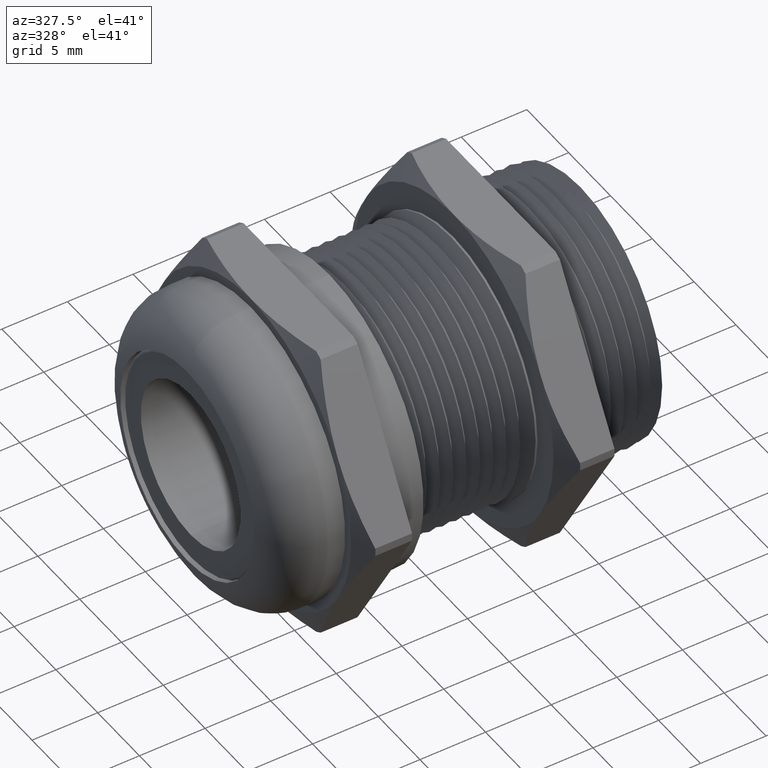
[diagram: clean part render]
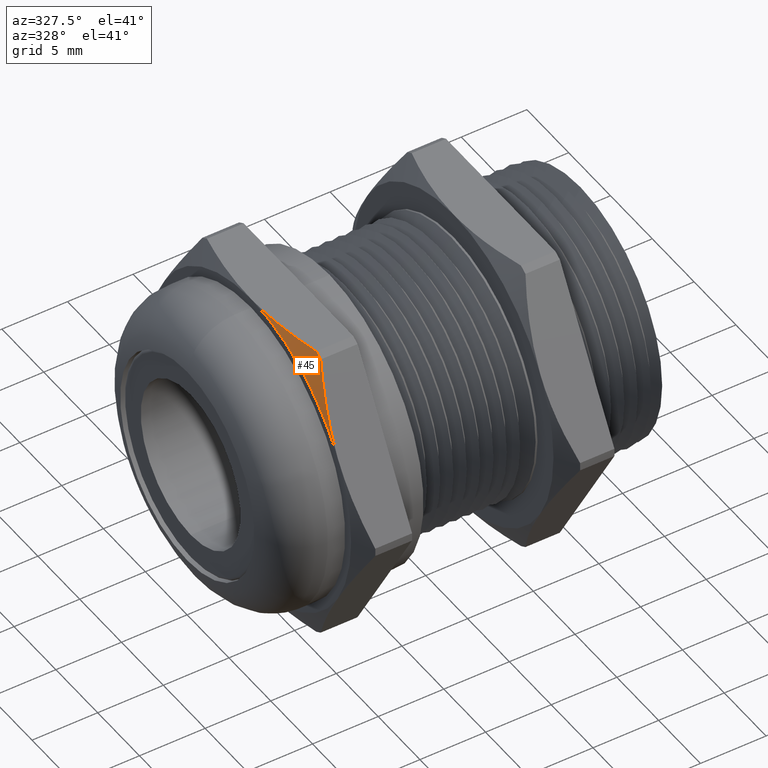
[diagram: same view with one face highlighted and labeled with its STEP entity id]
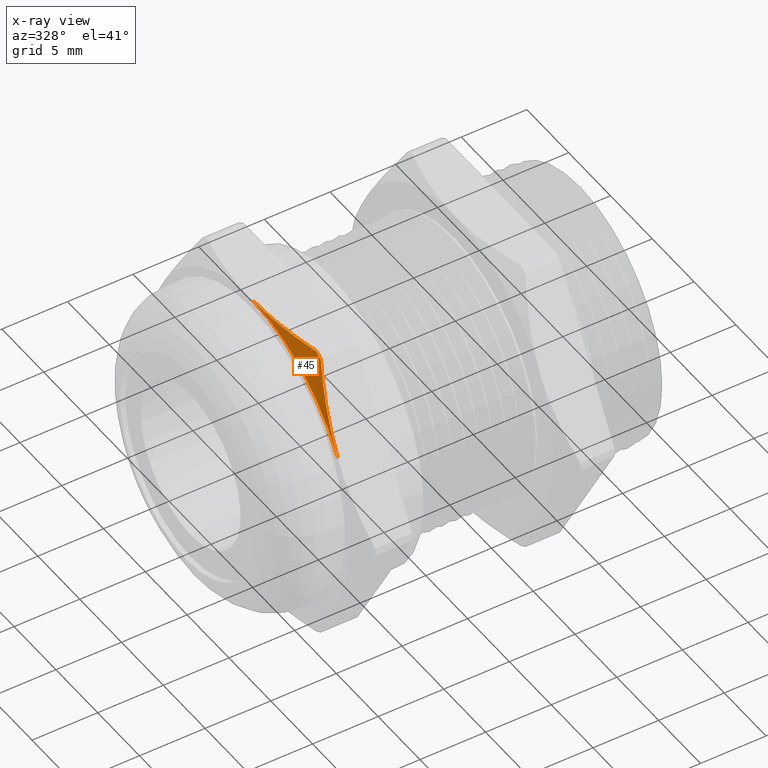
[diagram: x-ray of the same camera — body ghosted, the highlighted face saturated]
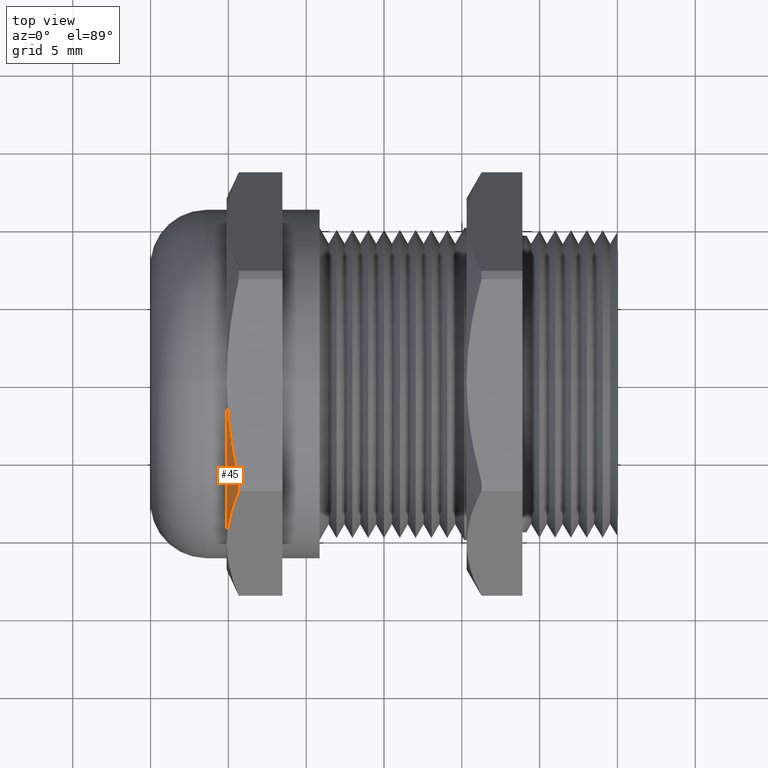
[diagram: same view with one face highlighted and labeled with its STEP entity id]
A machine part, auxiliary view. The second image highlights one B-rep face of the part: STEP entity #45.
The next image is the same camera in x-ray: the body ghosted, the highlighted face saturated — about 0% of this face is hidden behind the body in this view.
A second angle (top view) of the same face is appended — the face is thin or edge-on in the first view.
In plain terms, the highlighted conical surface has half-angle 65 deg.
Its self-contained STEP definition (entity closure, byte-faithful):
#45 = ADVANCED_FACE ( 'NONE', ( #1169 ), #1229, .T. ) ;
#46 = EDGE_LOOP ( 'NONE', ( #47, #96, #97, #98 ) ) ;
#47 = ORIENTED_EDGE ( 'NONE', *, *, #921, .F. ) ;
#96 = ORIENTED_EDGE ( 'NONE', *, *, #1097, .F. ) ;
#97 = ORIENTED_EDGE ( 'NONE', *, *, #859, .T. ) ;
#98 = ORIENTED_EDGE ( 'NONE', *, *, #987, .F. ) ;
#859 = EDGE_CURVE ( 'NONE', #860, #861, #2589, .T. ) ;
#860 = VERTEX_POINT ( 'NONE', #2585 ) ;
#861 = VERTEX_POINT ( 'NONE', #2584 ) ;
#919 = VERTEX_POINT ( 'NONE', #2690 ) ;
#921 = EDGE_CURVE ( 'NONE', #919, #922, #2689, .T. ) ;
#922 = VERTEX_POINT ( 'NONE', #2684 ) ;
#987 = EDGE_CURVE ( 'NONE', #922, #861, #2853, .T. ) ;
#1097 = EDGE_CURVE ( 'NONE', #860, #919, #3070, .T. ) ;
#1169 = FACE_OUTER_BOUND ( 'NONE', #46, .T. ) ;
#1224 = DIRECTION ( 'NONE',  ( 0.0000000000000000000, 0.0000000000000000000, 1.000000000000000000 ) ) ;
#1225 = DIRECTION ( 'NONE',  ( 1.000000000000000000, 0.0000000000000000000, 0.0000000000000000000 ) ) ;
#1226 = CARTESIAN_POINT ( 'NONE',  ( -0.3979999999999999600, 0.0000000000000000000, 0.0000000000000000000 ) ) ;
#1227 = AXIS2_PLACEMENT_3D ( 'NONE', #1226, #1225, #1224 ) ;
#1229 = CONICAL_SURFACE ( 'NONE', #1227, 0.4699999999999999200, 1.134464013796316700 ) ;
#2529 = CARTESIAN_POINT ( 'NONE',  ( -0.3673169560934012600, 0.0000000000000000000, 0.0000000000000000000 ) ) ;
#2584 = CARTESIAN_POINT ( 'NONE',  ( -0.3673169560934012600, -0.2572579250479953800, 0.4699999999999999200 ) ) ;
#2585 = CARTESIAN_POINT ( 'NONE',  ( -0.3673169560934012600, -0.2784029772546880400, 0.4577918984164371900 ) ) ;
#2586 = DIRECTION ( 'NONE',  ( 0.0000000000000000000, 0.0000000000000000000, -1.000000000000000000 ) ) ;
#2587 = DIRECTION ( 'NONE',  ( -1.000000000000000000, 0.0000000000000000000, 0.0000000000000000000 ) ) ;
#2588 = AXIS2_PLACEMENT_3D ( 'NONE', #2529, #2587, #2586 ) ;
#2589 = CIRCLE ( 'NONE', #2588, 0.5357999999999999400 ) ;
#2684 = CARTESIAN_POINT ( 'NONE',  ( -0.3979999999999999600, 0.0000000000000000000, 0.4699999999999999200 ) ) ;
#2685 = DIRECTION ( 'NONE',  ( 0.0000000000000000000, 0.0000000000000000000, 1.000000000000000000 ) ) ;
#2686 = DIRECTION ( 'NONE',  ( -1.000000000000000000, 0.0000000000000000000, 0.0000000000000000000 ) ) ;
#2687 = CARTESIAN_POINT ( 'NONE',  ( -0.3979999999999999600, 0.0000000000000000000, 0.0000000000000000000 ) ) ;
#2688 = AXIS2_PLACEMENT_3D ( 'NONE', #2687, #2686, #2685 ) ;
#2689 = CIRCLE ( 'NONE', #2688, 0.4699999999999999200 ) ;
#2690 = CARTESIAN_POINT ( 'NONE',  ( -0.3979999999999999600, -0.4070319397786859000, 0.2350000000000000400 ) ) ;
#2845 = CARTESIAN_POINT ( 'NONE',  ( -0.3673169560934012600, -0.2572579250479953800, 0.4699999999999999200 ) ) ;
#2846 = CARTESIAN_POINT ( 'NONE',  ( -0.3768023395716475500, -0.2148920391429554900, 0.4699999999999999200 ) ) ;
#2847 = CARTESIAN_POINT ( 'NONE',  ( -0.3846093986616976900, -0.1718493463453069100, 0.4699999999999999200 ) ) ;
#2848 = CARTESIAN_POINT ( 'NONE',  ( -0.3952008602424829100, -0.08598228865276656700, 0.4699999999999999700 ) ) ;
#2849 = CARTESIAN_POINT ( 'NONE',  ( -0.3979999999999999100, -0.04301184082541020100, 0.4699999999999997500 ) ) ;
#2850 = CARTESIAN_POINT ( 'NONE',  ( -0.3979999999999999600, 0.0000000000000000000, 0.4699999999999999200 ) ) ;
#2853 = B_SPLINE_CURVE_WITH_KNOTS ( 'NONE', 3,
 ( #2850, #2849, #2848, #2847, #2846, #2845 ),
 .UNSPECIFIED., .F., .F.,
 ( 4, 2, 4 ),
 ( 0.02935193730986051400, 0.03262232181001785400, 0.03589270631017519400 ),
 .UNSPECIFIED. ) ;
#3062 = CARTESIAN_POINT ( 'NONE',  ( -0.3979999999999999600, -0.4070319397786859000, 0.2350000000000000400 ) ) ;
#3063 = CARTESIAN_POINT ( 'NONE',  ( -0.3980000000000000200, -0.3854484215726742300, 0.2723837501389000900 ) ) ;
#3064 = CARTESIAN_POINT ( 'NONE',  ( -0.3951819607584254900, -0.3639450044044379400, 0.3096287612106341500 ) ) ;
#3065 = CARTESIAN_POINT ( 'NONE',  ( -0.3845976359084218300, -0.3210788209373028900, 0.3838751689022811300 ) ) ;
#3066 = CARTESIAN_POINT ( 'NONE',  ( -0.3768602439333986200, -0.2997152333545882700, 0.4208779880274901600 ) ) ;
#3067 = CARTESIAN_POINT ( 'NONE',  ( -0.3673169560934012600, -0.2784029772546880400, 0.4577918984164371900 ) ) ;
#3070 = B_SPLINE_CURVE_WITH_KNOTS ( 'NONE', 3,
 ( #3067, #3066, #3065, #3064, #3063, #3062 ),
 .UNSPECIFIED., .F., .F.,
 ( 4, 2, 4 ),
 ( 2.335025397767758400E-007, 0.003284259328128084000, 0.006568285153716391300 ),
 .UNSPECIFIED. ) ;